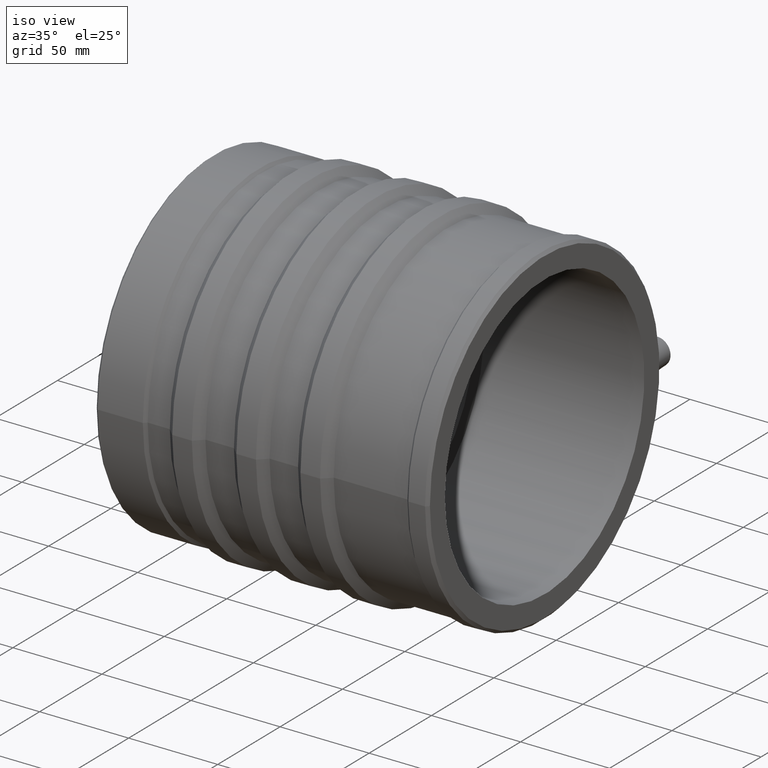
[diagram: clean part render]
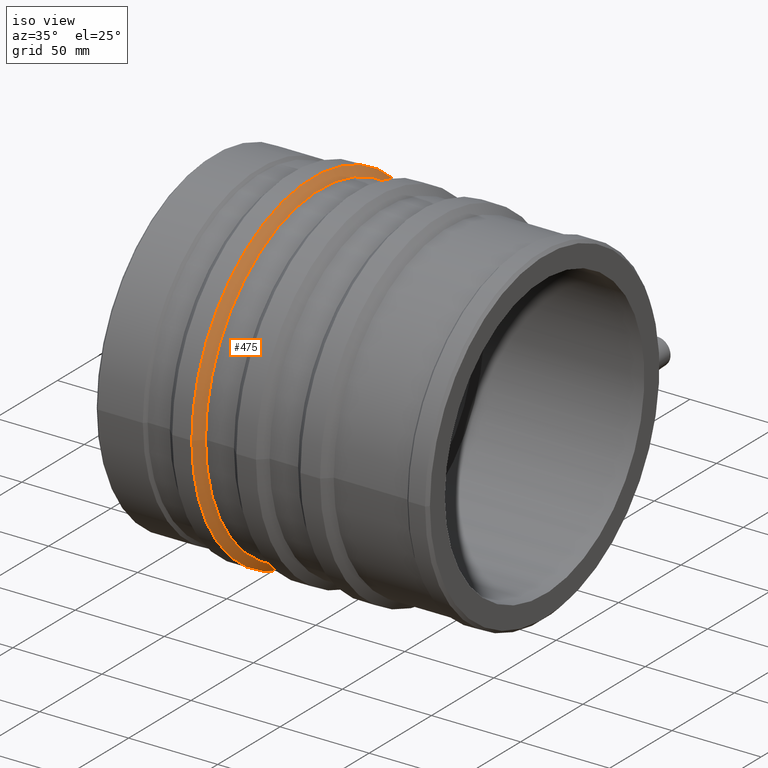
[diagram: same view with one face highlighted and labeled with its STEP entity id]
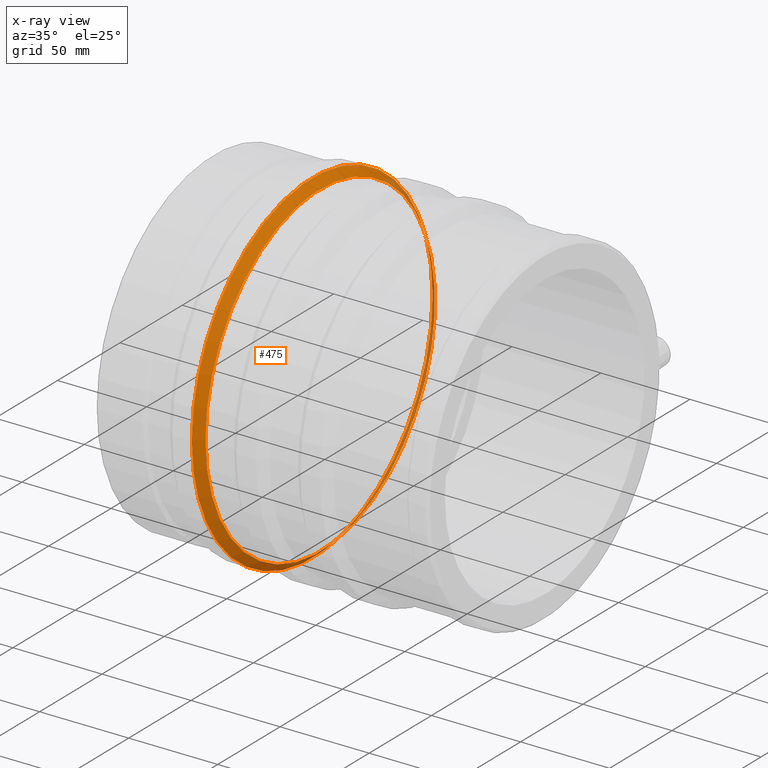
[diagram: x-ray of the same camera — body ghosted, the highlighted face saturated]
A machine part, iso view. The second image highlights one B-rep face of the part: STEP entity #475.
The next image is the same camera in x-ray: the body ghosted, the highlighted face saturated — about 15% of this face is hidden behind the body in this view.
In plain terms, the highlighted conical surface has half-angle 45 deg.
Its self-contained STEP definition (entity closure, byte-faithful):
#33=CONICAL_SURFACE('',#549,94.25,45.);
#65=FACE_BOUND('',#192,.T.);
#122=FACE_OUTER_BOUND('',#191,.T.);
#191=EDGE_LOOP('',(#414));
#192=EDGE_LOOP('',(#415));
#239=CIRCLE('',#548,92.);
#240=CIRCLE('',#550,96.5);
#282=VERTEX_POINT('',#918);
#283=VERTEX_POINT('',#921);
#329=EDGE_CURVE('',#282,#282,#239,.T.);
#330=EDGE_CURVE('',#283,#283,#240,.T.);
#414=ORIENTED_EDGE('',*,*,#330,.F.);
#415=ORIENTED_EDGE('',*,*,#329,.T.);
#475=ADVANCED_FACE('',(#122,#65),#33,.T.);
#548=AXIS2_PLACEMENT_3D('',#919,#692,#693);
#549=AXIS2_PLACEMENT_3D('',#920,#694,#695);
#550=AXIS2_PLACEMENT_3D('',#922,#696,#697);
#692=DIRECTION('center_axis',(-1.,-1.83697019872103E-16,0.));
#693=DIRECTION('ref_axis',(0.,0.,1.));
#694=DIRECTION('center_axis',(-1.,-1.83697019872103E-16,0.));
#695=DIRECTION('ref_axis',(1.80411241501588E-16,-1.,0.));
#696=DIRECTION('center_axis',(-1.,-1.83697019872103E-16,0.));
#697=DIRECTION('ref_axis',(0.,0.,1.));
#918=CARTESIAN_POINT('',(-32.5,-92.,0.));
#919=CARTESIAN_POINT('Origin',(-32.5,1.12055182121983E-14,0.));
#920=CARTESIAN_POINT('Origin',(-34.75,1.0792199917486E-14,0.));
#921=CARTESIAN_POINT('',(-37.,-96.5,0.));
#922=CARTESIAN_POINT('Origin',(-37.,1.03788816227738E-14,0.));